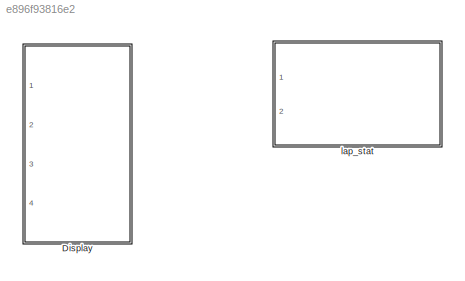
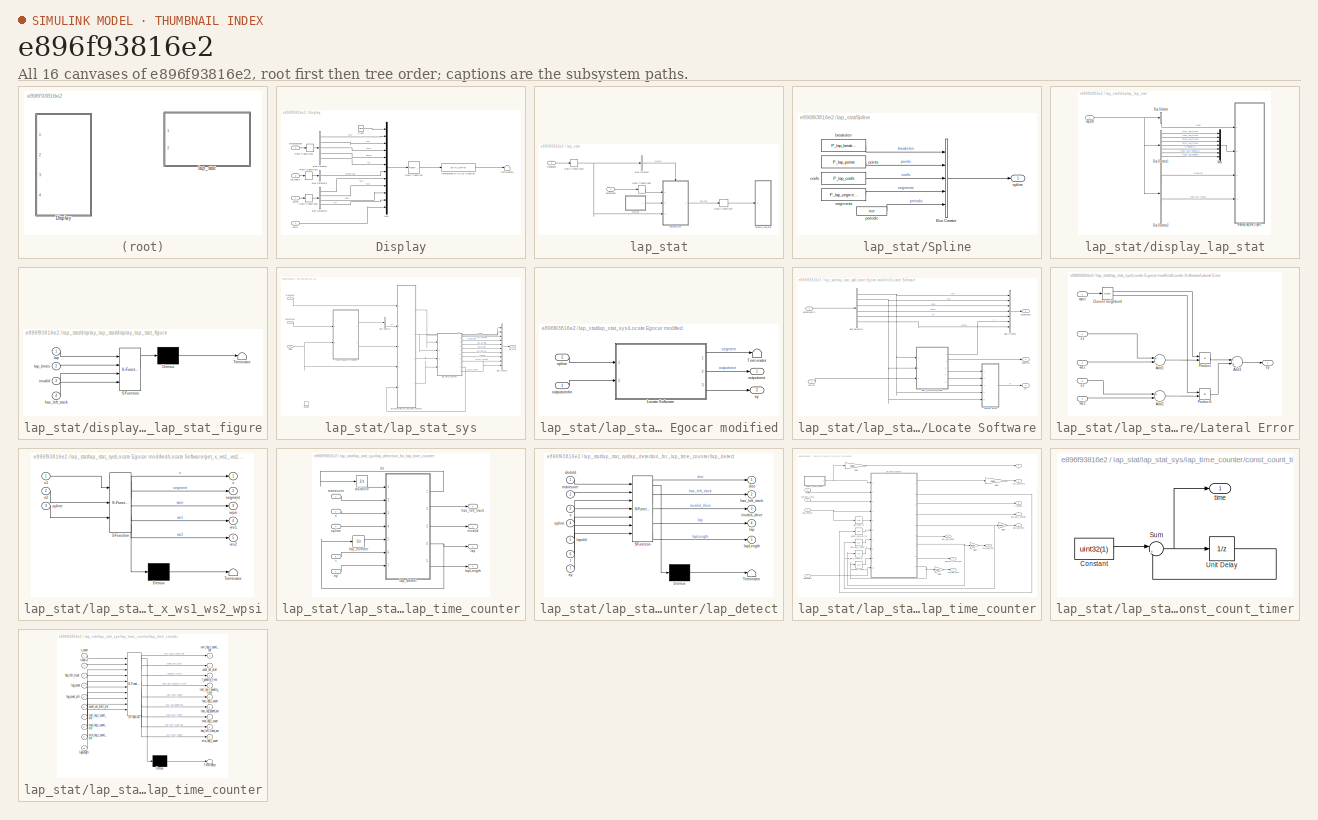
[diagram: thumbnail index - all 16 canvases of the model, root first then tree order]
MODEL slx_e896f93816e2
KIND library
CONFIG AbsTol = auto
CONFIG EnableMultiTasking = off
CONFIG FixedStep = auto
CONFIG MaxStep = auto
CONFIG MinStep = auto
CONFIG RelTol = 1e-3
CONFIG SampleTimeConstraint = Unconstrained
CONFIG Solver = VariableStepAuto
CONFIG SolverName = VariableStepAuto
CONFIG StartTime = 0.0
CONFIG StopTime = 10.0
BLOCK [SubSystem] Display
  Ports = [4]
  RequestExecContextInheritance = off
BLOCK [BusSelector] Display/Bus Selector
  OutputAsBus = off
  OutputSignals = s1,s2,psi,beta,v
  Ports = [1, 5]
BLOCK [BusSelector] Display/Bus Selector1
  OutputAsBus = off
  OutputSignals = steering
  Ports = [1, 1]
BLOCK [BusSelector] Display/Bus Selector2
  OutputAsBus = off
  OutputSignals = s1,s2,psi,v
  Ports = [1, 4]
BLOCK [Clock] Display/Clock
BLOCK [MATLABFcn] Display/Interpreted MATLAB Function
  MATLABFcn = mbc_car_display(u(1),u(2),u(3),u(4),u(5), u(6), u(7), u(8), u(9), u(10), u(11), u(12))
  Ports = [1, 1]
BLOCK [Mux] Display/Mux
  DisplayOption = bar
  Inputs = 12
  Ports = [12, 1]
BLOCK [RateTransition] Display/Rate Transition
  OutPortSampleTime = P_display_dt
BLOCK [RateTransition] Display/Rate Transition3
BLOCK [RateTransition] Display/Rate Transition4
BLOCK [RateTransition] Display/Rate Transition5
BLOCK [Terminator] Display/Terminator6
BLOCK [Inport] Display/carid
  IconDisplay = Port number
  SamplingMode = Sample based
  SignalType = real
BLOCK [Inport] Display/carinputs
  IconDisplay = Port number
  Port = 2
  SamplingMode = Sample based
  SignalType = real
BLOCK [Inport] Display/caroutputsext
  IconDisplay = Port number
  Port = 3
  SamplingMode = Sample based
  SignalType = real
BLOCK [Inport] Display/carref
  IconDisplay = Port number
  Port = 4
  SamplingMode = Sample based
  SignalType = real
BLOCK [SubSystem] lap_stat
  Ports = [2]
  RequestExecContextInheritance = off
BLOCK [BusSelector] lap_stat/Bus Selector
  OutputAsBus = off
  OutputSignals = vmax
  Ports = [1, 1]
BLOCK [RateTransition] lap_stat/Rate Transition10
BLOCK [RateTransition] lap_stat/Rate Transition7
  OutPortSampleTime = P_display_dt
BLOCK [RateTransition] lap_stat/Rate Transition8
BLOCK [SubSystem] lap_stat/Spline
  Ports = [0, 1]
  RequestExecContextInheritance = off
BLOCK [BusCreator] lap_stat/Spline/Bus Creator
  DisplayOption = bar
  InheritFromInputs = on
  Inputs = 5
  NonVirtualBus = on
  OutDataTypeStr = Bus: SPLINE
  Ports = [5, 1]
BLOCK [Constant] lap_stat/Spline/breakslen
  Value = P_lap_breakslen
BLOCK [Constant] lap_stat/Spline/coefs
  Value = P_lap_coefs
BLOCK [Constant] lap_stat/Spline/periodic
  Value = true
BLOCK [Constant] lap_stat/Spline/points
  Value = P_lap_points
BLOCK [Constant] lap_stat/Spline/segments
  Value = P_lap_segments
BLOCK [Outport] lap_stat/Spline/spline
  IconDisplay = Port number
BLOCK [SubSystem] lap_stat/display_lap_stat
  Ports = [1]
  RequestExecContextInheritance = off
BLOCK [BusSelector] lap_stat/display_lap_stat/Bus Selector
  OutputAsBus = off
  OutputSignals = lap
  Ports = [1, 1]
BLOCK [BusSelector] lap_stat/display_lap_stat/Bus Selector1
  OutputAsBus = off
  OutputSignals = curr_lap_time,last_lap_time,max_lap_time,min_lap_time,t_penalty,last_lap_t_penalty,last_lap_speed
  Ports = [1, 7]
BLOCK [BusSelector] lap_stat/display_lap_stat/Bus Selector2
  OutputAsBus = off
  OutputSignals = invalid,has_left_track
  Ports = [1, 2]
BLOCK [Mux] lap_stat/display_lap_stat/Mux
  DisplayOption = bar
  Inputs = 7
  Ports = [7, 1]
BLOCK [SubSystem] lap_stat/display_lap_stat/display_lap_stat_figure
  ErrorFcn = Stateflow.Translate.translate
  PermitHierarchicalResolution = ExplicitOnly
  Ports = [4]
  RequestExecContextInheritance = off
  SFBlockType = MATLAB Function
  TreatAsAtomicUnit = on
BLOCK [Demux] lap_stat/display_lap_stat/display_lap_stat_figure/ Demux 
  Outputs = 1
  Ports = [1, 1]
BLOCK [S-Function] lap_stat/display_lap_stat/display_lap_stat_figure/ SFunction 
  EnableBusSupport = off
  FunctionName = sf_sfun
  PortCounts = [4 1]
  Ports = [4, 1]
  SFcnIsStateOwnerBlock = off
  SFunctionDeploymentMode = off
  Tag = Stateflow S-Function mad_lib_template 1
BLOCK [Terminator] lap_stat/display_lap_stat/display_lap_stat_figure/ Terminator 
BLOCK [Inport] lap_stat/display_lap_stat/display_lap_stat_figure/has_left_track
  IconDisplay = Port number
  Port = 4
BLOCK [Inport] lap_stat/display_lap_stat/display_lap_stat_figure/invalid
  IconDisplay = Port number
  Port = 3
BLOCK [Inport] lap_stat/display_lap_stat/display_lap_stat_figure/lap
  IconDisplay = Port number
BLOCK [Inport] lap_stat/display_lap_stat/display_lap_stat_figure/lap_times
  IconDisplay = Port number
  Port = 2
BLOCK [Inport] lap_stat/display_lap_stat/lap_stat
  IconDisplay = Port number
BLOCK [SubSystem] lap_stat/lap_stat_sys
  Ports = [3, 1, 1]
  RequestExecContextInheritance = off
BLOCK [BusCreator] lap_stat/lap_stat_sys/Bus Creator
  DisplayOption = bar
  InheritFromInputs = on
  Inputs = 10
  Ports = [10, 1]
BLOCK [BusSelector] lap_stat/lap_stat_sys/Bus Selector
  OutputAsBus = off
  OutputSignals = x
  Ports = [1, 1]
BLOCK [EnablePort] lap_stat/lap_stat_sys/Enable
  Ports = []
  StatesWhenEnabling = reset
BLOCK [SubSystem] lap_stat/lap_stat_sys/Locate Egocar modified
  Ports = [2, 2]
  RequestExecContextInheritance = off
  SystemSampleTime = P_sim_dt
BLOCK [SubSystem] lap_stat/lap_stat_sys/Locate Egocar modified/Locate Software
  Ports = [2, 3]
  RequestExecContextInheritance = off
  SystemSampleTime = P_dt
BLOCK [BusCreator] lap_stat/lap_stat_sys/Locate Egocar modified/Locate Software/Bus Creator
  DisplayOption = bar
  InheritFromInputs = on
  Inputs = 7
  NonVirtualBus = on
  OutDataTypeStr = Bus: CAROUTPUTSEXT
  Ports = [7, 1]
BLOCK [BusSelector] lap_stat/lap_stat_sys/Locate Egocar modified/Locate Software/Bus Selector1
  OutputAsBus = off
  OutputSignals = s1,s2,psi,beta,v,time
  Ports = [1, 6]
BLOCK [SubSystem] lap_stat/lap_stat_sys/Locate Egocar modified/Locate Software/Lateral Error
  Ports = [5, 1]
  RequestExecContextInheritance = off
BLOCK [Sum] lap_stat/lap_stat_sys/Locate Egocar modified/Locate Software/Lateral Error/Add1
  InputSameDT = off
  Inputs = +-
  OutDataTypeStr = Inherit: Inherit via internal rule
  Ports = [2, 1]
  SaturateOnIntegerOverflow = off
BLOCK [Sum] lap_stat/lap_stat_sys/Locate Egocar modified/Locate Software/Lateral Error/Add2
  InputSameDT = off
  Inputs = +-
  OutDataTypeStr = Inherit: Inherit via internal rule
  Ports = [2, 1]
  SaturateOnIntegerOverflow = off
BLOCK [Sum] lap_stat/lap_stat_sys/Locate Egocar modified/Locate Software/Lateral Error/Add3
  InputSameDT = off
  Inputs = -+
  OutDataTypeStr = Inherit: Inherit via internal rule
  Ports = [2, 1]
  SaturateOnIntegerOverflow = off
BLOCK [Trigonometry] lap_stat/lap_stat_sys/Locate Egocar modified/Locate Software/Lateral Error/Closest neighbor4
  Operator = sincos
  Ports = [1, 2]
BLOCK [Product] lap_stat/lap_stat_sys/Locate Egocar modified/Locate Software/Lateral Error/Product
  InputSameDT = off
  OutDataTypeStr = Inherit: Inherit via internal rule
  Ports = [2, 1]
  RndMeth = Floor
  SaturateOnIntegerOverflow = off
BLOCK [Product] lap_stat/lap_stat_sys/Locate Egocar modified/Locate Software/Lateral Error/Product1
  InputSameDT = off
  OutDataTypeStr = Inherit: Inherit via internal rule
  Ports = [2, 1]
  RndMeth = Floor
  SaturateOnIntegerOverflow = off
BLOCK [Outport] lap_stat/lap_stat_sys/Locate Egocar modified/Locate Software/Lateral Error/ey
  IconDisplay = Port number
BLOCK [Inport] lap_stat/lap_stat_sys/Locate Egocar modified/Locate Software/Lateral Error/s1
  IconDisplay = Port number
  Port = 4
BLOCK [Inport] lap_stat/lap_stat_sys/Locate Egocar modified/Locate Software/Lateral Error/s2
  IconDisplay = Port number
  Port = 5
BLOCK [Inport] lap_stat/lap_stat_sys/Locate Egocar modified/Locate Software/Lateral Error/wpsi
  IconDisplay = Port number
BLOCK [Inport] lap_stat/lap_stat_sys/Locate Egocar modified/Locate Software/Lateral Error/ws1
  IconDisplay = Port number
  Port = 2
BLOCK [Inport] lap_stat/lap_stat_sys/Locate Egocar modified/Locate Software/Lateral Error/ws2
  IconDisplay = Port number
  Port = 3
BLOCK [Outport] lap_stat/lap_stat_sys/Locate Egocar modified/Locate Software/ey
  IconDisplay = Port number
  Port = 3
  VarSizeSig = No
BLOCK [SubSystem] lap_stat/lap_stat_sys/Locate Egocar modified/Locate Software/get_x_ws1_ws2_wpsi
  ErrorFcn = Stateflow.Translate.translate
  PermitHierarchicalResolution = ExplicitOnly
  Ports = [3, 5]
  RequestExecContextInheritance = off
  SFBlockType = MATLAB Function
  TreatAsAtomicUnit = on
BLOCK [Demux] lap_stat/lap_stat_sys/Locate Egocar modified/Locate Software/get_x_ws1_ws2_wpsi/ Demux 
  Outputs = 1
  Ports = [1, 1]
BLOCK [S-Function] lap_stat/lap_stat_sys/Locate Egocar modified/Locate Software/get_x_ws1_ws2_wpsi/ SFunction 
  EnableBusSupport = off
  FunctionName = sf_sfun
  PortCounts = [3 6]
  Ports = [3, 6]
  SFcnIsStateOwnerBlock = off
  SFunctionDeploymentMode = off
  Tag = Stateflow S-Function mad_lib_template 70
BLOCK [Terminator] lap_stat/lap_stat_sys/Locate Egocar modified/Locate Software/get_x_ws1_ws2_wpsi/ Terminator 
BLOCK [Inport] lap_stat/lap_stat_sys/Locate Egocar modified/Locate Software/get_x_ws1_ws2_wpsi/s1
  IconDisplay = Port number
BLOCK [Inport] lap_stat/lap_stat_sys/Locate Egocar modified/Locate Software/get_x_ws1_ws2_wpsi/s2
  IconDisplay = Port number
  Port = 2
BLOCK [Outport] lap_stat/lap_stat_sys/Locate Egocar modified/Locate Software/get_x_ws1_ws2_wpsi/segment
  IconDisplay = Port number
  Port = 2
BLOCK [Inport] lap_stat/lap_stat_sys/Locate Egocar modified/Locate Software/get_x_ws1_ws2_wpsi/spline
  IconDisplay = Port number
  Port = 3
BLOCK [Outport] lap_stat/lap_stat_sys/Locate Egocar modified/Locate Software/get_x_ws1_ws2_wpsi/wpsi
  IconDisplay = Port number
  Port = 3
BLOCK [Outport] lap_stat/lap_stat_sys/Locate Egocar modified/Locate Software/get_x_ws1_ws2_wpsi/ws1
  IconDisplay = Port number
  Port = 4
BLOCK [Outport] lap_stat/lap_stat_sys/Locate Egocar modified/Locate Software/get_x_ws1_ws2_wpsi/ws2
  IconDisplay = Port number
  Port = 5
BLOCK [Outport] lap_stat/lap_stat_sys/Locate Egocar modified/Locate Software/get_x_ws1_ws2_wpsi/x
  IconDisplay = Port number
BLOCK [Outport] lap_stat/lap_stat_sys/Locate Egocar modified/Locate Software/outputsext
  IconDisplay = Port number
  Port = 2
  VarSizeSig = No
BLOCK [Inport] lap_stat/lap_stat_sys/Locate Egocar modified/Locate Software/outputsextin
  IconDisplay = Port number
  Port = 2
BLOCK [Outport] lap_stat/lap_stat_sys/Locate Egocar modified/Locate Software/segment
  IconDisplay = Port number
  VarSizeSig = No
BLOCK [Inport] lap_stat/lap_stat_sys/Locate Egocar modified/Locate Software/spline
  IconDisplay = Port number
BLOCK [Terminator] lap_stat/lap_stat_sys/Locate Egocar modified/Terminator
BLOCK [Outport] lap_stat/lap_stat_sys/Locate Egocar modified/ey
  IconDisplay = Port number
  Port = 2
BLOCK [Outport] lap_stat/lap_stat_sys/Locate Egocar modified/outputsext
  IconDisplay = Port number
BLOCK [Inport] lap_stat/lap_stat_sys/Locate Egocar modified/outputsextin
  IconDisplay = Port number
BLOCK [Inport] lap_stat/lap_stat_sys/Locate Egocar modified/spline
  IconDisplay = Port number
  Port = 2
BLOCK [SubSystem] lap_stat/lap_stat_sys/lap_detection_for_lap_time_counter
  Ports = [5, 4]
  RequestExecContextInheritance = off
  SystemSampleTime = P_sim_dt
BLOCK [UnitDelay] lap_stat/lap_stat_sys/lap_detection_for_lap_time_counter/distance
  HasFrameUpgradeWarning = on
  InitialCondition = -inf
  SampleTime = -1
BLOCK [Inport] lap_stat/lap_stat_sys/lap_detection_for_lap_time_counter/ey
  IconDisplay = Port number
  Port = 3
BLOCK [Outport] lap_stat/lap_stat_sys/lap_detection_for_lap_time_counter/has_left_track
  IconDisplay = Port number
  Port = 3
BLOCK [Outport] lap_stat/lap_stat_sys/lap_detection_for_lap_time_counter/invalid
  IconDisplay = Port number
BLOCK [Outport] lap_stat/lap_stat_sys/lap_detection_for_lap_time_counter/lap
  IconDisplay = Port number
  Port = 2
BLOCK [Outport] lap_stat/lap_stat_sys/lap_detection_for_lap_time_counter/lapLength
  IconDisplay = Port number
  Port = 4
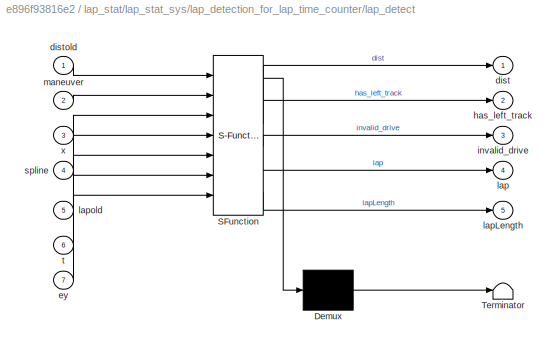
BLOCK [SubSystem] lap_stat/lap_stat_sys/lap_detection_for_lap_time_counter/lap_detect
  ErrorFcn = Stateflow.Translate.translate
  PermitHierarchicalResolution = ExplicitOnly
  Ports = [7, 5]
  RequestExecContextInheritance = off
  SFBlockType = MATLAB Function
  TreatAsAtomicUnit = on
BLOCK [Demux] lap_stat/lap_stat_sys/lap_detection_for_lap_time_counter/lap_detect/ Demux 
  Outputs = 1
  Ports = [1, 1]
BLOCK [S-Function] lap_stat/lap_stat_sys/lap_detection_for_lap_time_counter/lap_detect/ SFunction 
  EnableBusSupport = off
  FunctionName = sf_sfun
  Parameters = P_p_c_2,P_width
  PortCounts = [7 6]
  Ports = [7, 6]
  SFcnIsStateOwnerBlock = off
  SFunctionDeploymentMode = off
  Tag = Stateflow S-Function mad_lib_template 60
BLOCK [Terminator] lap_stat/lap_stat_sys/lap_detection_for_lap_time_counter/lap_detect/ Terminator 
BLOCK [Outport] lap_stat/lap_stat_sys/lap_detection_for_lap_time_counter/lap_detect/dist
  IconDisplay = Port number
BLOCK [Inport] lap_stat/lap_stat_sys/lap_detection_for_lap_time_counter/lap_detect/distold
  IconDisplay = Port number
BLOCK [Inport] lap_stat/lap_stat_sys/lap_detection_for_lap_time_counter/lap_detect/ey
  IconDisplay = Port number
  Port = 7
BLOCK [Outport] lap_stat/lap_stat_sys/lap_detection_for_lap_time_counter/lap_detect/has_left_track
  IconDisplay = Port number
  Port = 2
BLOCK [Outport] lap_stat/lap_stat_sys/lap_detection_for_lap_time_counter/lap_detect/invalid_drive
  IconDisplay = Port number
  Port = 3
BLOCK [Outport] lap_stat/lap_stat_sys/lap_detection_for_lap_time_counter/lap_detect/lap
  IconDisplay = Port number
  Port = 4
BLOCK [Outport] lap_stat/lap_stat_sys/lap_detection_for_lap_time_counter/lap_detect/lapLength
  IconDisplay = Port number
  Port = 5
BLOCK [Inport] lap_stat/lap_stat_sys/lap_detection_for_lap_time_counter/lap_detect/lapold
  IconDisplay = Port number
  Port = 5
BLOCK [Inport] lap_stat/lap_stat_sys/lap_detection_for_lap_time_counter/lap_detect/maneuver
  IconDisplay = Port number
  Port = 2
BLOCK [Inport] lap_stat/lap_stat_sys/lap_detection_for_lap_time_counter/lap_detect/spline
  IconDisplay = Port number
  Port = 4
BLOCK [Inport] lap_stat/lap_stat_sys/lap_detection_for_lap_time_counter/lap_detect/t
  IconDisplay = Port number
  Port = 6
BLOCK [Inport] lap_stat/lap_stat_sys/lap_detection_for_lap_time_counter/lap_detect/x
  IconDisplay = Port number
  Port = 3
BLOCK [UnitDelay] lap_stat/lap_stat_sys/lap_detection_for_lap_time_counter/lap_number
  HasFrameUpgradeWarning = on
  InitialCondition = uint32(0)
  SampleTime = -1
BLOCK [Inport] lap_stat/lap_stat_sys/lap_detection_for_lap_time_counter/maneuver
  IconDisplay = Port number
BLOCK [Inport] lap_stat/lap_stat_sys/lap_detection_for_lap_time_counter/spline
  IconDisplay = Port number
  Port = 4
BLOCK [Inport] lap_stat/lap_stat_sys/lap_detection_for_lap_time_counter/t
  IconDisplay = Port number
  Port = 5
BLOCK [Inport] lap_stat/lap_stat_sys/lap_detection_for_lap_time_counter/x
  IconDisplay = Port number
  Port = 2
BLOCK [Outport] lap_stat/lap_stat_sys/lap_stat
  IconDisplay = Port number
BLOCK [SubSystem] lap_stat/lap_stat_sys/lap_time_counter
  Ports = [4, 9]
  RequestExecContextInheritance = off
  SystemSampleTime = P_sim_dt
BLOCK [Gain] lap_stat/lap_stat_sys/lap_time_counter/Gain1
  Gain = single(P_sim_dt)
  OutDataTypeStr = single
  ParamDataTypeStr = Inherit: Inherit via internal rule
  SaturateOnIntegerOverflow = off
BLOCK [Gain] lap_stat/lap_stat_sys/lap_time_counter/Gain2
  Gain = single(P_sim_dt)
  OutDataTypeStr = single
  ParamDataTypeStr = Inherit: Inherit via internal rule
  SaturateOnIntegerOverflow = off
BLOCK [Gain] lap_stat/lap_stat_sys/lap_time_counter/Gain3
  Gain = single(P_sim_dt)
  OutDataTypeStr = single
  ParamDataTypeStr = Inherit: Inherit via internal rule
  SaturateOnIntegerOverflow = off
BLOCK [Gain] lap_stat/lap_stat_sys/lap_time_counter/Gain4
  Gain = single(P_sim_dt)
  OutDataTypeStr = single
  ParamDataTypeStr = Inherit: Inherit via internal rule
  SaturateOnIntegerOverflow = off
BLOCK [Gain] lap_stat/lap_stat_sys/lap_time_counter/Gain5
  Gain = single(P_sim_dt)
  OutDataTypeStr = single
  ParamDataTypeStr = Inherit: Inherit via internal rule
  SaturateOnIntegerOverflow = off
BLOCK [SubSystem] lap_stat/lap_stat_sys/lap_time_counter/const_count_timer
  Ports = [0, 1]
  RequestExecContextInheritance = off
BLOCK [Constant] lap_stat/lap_stat_sys/lap_time_counter/const_count_timer/Constant
  SampleTime = -1
  Value = uint32(1)
BLOCK [Sum] lap_stat/lap_stat_sys/lap_time_counter/const_count_timer/Sum
  IconShape = round
  InputSameDT = off
  Inputs = |++
  OutDataTypeStr = Inherit: Inherit via internal rule
  Ports = [2, 1]
  SaturateOnIntegerOverflow = off
BLOCK [UnitDelay] lap_stat/lap_stat_sys/lap_time_counter/const_count_timer/Unit Delay
  HasFrameUpgradeWarning = on
  InitialCondition = uint32(0)
  SampleTime = -1
BLOCK [Outport] lap_stat/lap_stat_sys/lap_time_counter/const_count_timer/time
  IconDisplay = Port number
BLOCK [UnitDelay] lap_stat/lap_stat_sys/lap_time_counter/count_val_start_d
  HasFrameUpgradeWarning = on
  InitialCondition = uint32(0)
  SampleTime = -1
BLOCK [Outport] lap_stat/lap_stat_sys/lap_time_counter/curr_lap_time
  IconDisplay = Port number
BLOCK [Inport] lap_stat/lap_stat_sys/lap_time_counter/has_left_track
  IconDisplay = Port number
  Port = 3
BLOCK [Outport] lap_stat/lap_stat_sys/lap_time_counter/has_left_track_out
  IconDisplay = Port number
  Port = 5
BLOCK [Inport] lap_stat/lap_stat_sys/lap_time_counter/invalid
  IconDisplay = Port number
BLOCK [Inport] lap_stat/lap_stat_sys/lap_time_counter/lapLength
  IconDisplay = Port number
  Port = 4
BLOCK [UnitDelay] lap_stat/lap_stat_sys/lap_time_counter/lap_count_d
  HasFrameUpgradeWarning = on
  InitialCondition = uint32(0)
  SampleTime = -1
BLOCK [Inport] lap_stat/lap_stat_sys/lap_time_counter/lap_counter
  IconDisplay = Port number
  Port = 2
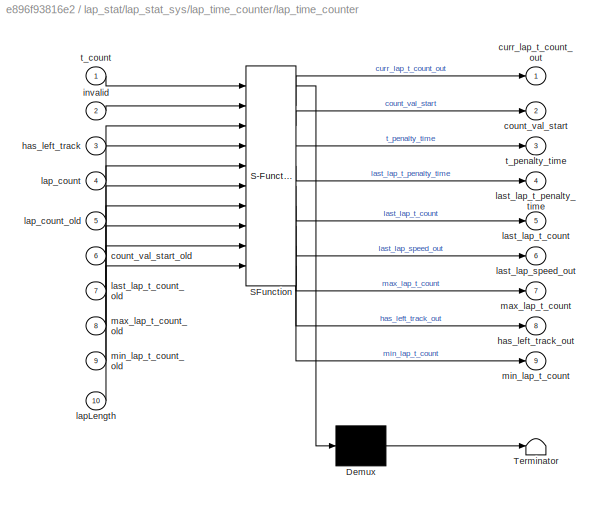
BLOCK [SubSystem] lap_stat/lap_stat_sys/lap_time_counter/lap_time_counter
  ErrorFcn = Stateflow.Translate.translate
  PermitHierarchicalResolution = ExplicitOnly
  Ports = [10, 9]
  RequestExecContextInheritance = off
  SFBlockType = MATLAB Function
  TreatAsAtomicUnit = on
BLOCK [Demux] lap_stat/lap_stat_sys/lap_time_counter/lap_time_counter/ Demux 
  Outputs = 1
  Ports = [1, 1]
BLOCK [S-Function] lap_stat/lap_stat_sys/lap_time_counter/lap_time_counter/ SFunction 
  EnableBusSupport = off
  FunctionName = sf_sfun
  Parameters = P_sim_dt
  PortCounts = [10 10]
  Ports = [10, 10]
  SFcnIsStateOwnerBlock = off
  SFunctionDeploymentMode = off
  Tag = Stateflow S-Function mad_lib_template 6
BLOCK [Terminator] lap_stat/lap_stat_sys/lap_time_counter/lap_time_counter/ Terminator 
BLOCK [Outport] lap_stat/lap_stat_sys/lap_time_counter/lap_time_counter/count_val_start
  IconDisplay = Port number
  Port = 2
BLOCK [Inport] lap_stat/lap_stat_sys/lap_time_counter/lap_time_counter/count_val_start_old
  IconDisplay = Port number
  Port = 6
BLOCK [Outport] lap_stat/lap_stat_sys/lap_time_counter/lap_time_counter/curr_lap_t_count_out
  IconDisplay = Port number
BLOCK [Inport] lap_stat/lap_stat_sys/lap_time_counter/lap_time_counter/has_left_track
  IconDisplay = Port number
  Port = 3
BLOCK [Outport] lap_stat/lap_stat_sys/lap_time_counter/lap_time_counter/has_left_track_out
  IconDisplay = Port number
  Port = 8
BLOCK [Inport] lap_stat/lap_stat_sys/lap_time_counter/lap_time_counter/invalid
  IconDisplay = Port number
  Port = 2
BLOCK [Inport] lap_stat/lap_stat_sys/lap_time_counter/lap_time_counter/lapLength
  IconDisplay = Port number
  Port = 10
BLOCK [Inport] lap_stat/lap_stat_sys/lap_time_counter/lap_time_counter/lap_count
  IconDisplay = Port number
  Port = 4
BLOCK [Inport] lap_stat/lap_stat_sys/lap_time_counter/lap_time_counter/lap_count_old
  IconDisplay = Port number
  Port = 5
BLOCK [Outport] lap_stat/lap_stat_sys/lap_time_counter/lap_time_counter/last_lap_speed_out
  IconDisplay = Port number
  Port = 6
BLOCK [Outport] lap_stat/lap_stat_sys/lap_time_counter/lap_time_counter/last_lap_t_count
  IconDisplay = Port number
  Port = 5
BLOCK [Inport] lap_stat/lap_stat_sys/lap_time_counter/lap_time_counter/last_lap_t_count_old
  IconDisplay = Port number
  Port = 7
BLOCK [Outport] lap_stat/lap_stat_sys/lap_time_counter/lap_time_counter/last_lap_t_penalty_time
  IconDisplay = Port number
  Port = 4
BLOCK [Outport] lap_stat/lap_stat_sys/lap_time_counter/lap_time_counter/max_lap_t_count
  IconDisplay = Port number
  Port = 7
BLOCK [Inport] lap_stat/lap_stat_sys/lap_time_counter/lap_time_counter/max_lap_t_count_old
  IconDisplay = Port number
  Port = 8
BLOCK [Outport] lap_stat/lap_stat_sys/lap_time_counter/lap_time_counter/min_lap_t_count
  IconDisplay = Port number
  Port = 9
BLOCK [Inport] lap_stat/lap_stat_sys/lap_time_counter/lap_time_counter/min_lap_t_count_old
  IconDisplay = Port number
  Port = 9
BLOCK [Inport] lap_stat/lap_stat_sys/lap_time_counter/lap_time_counter/t_count
  IconDisplay = Port number
BLOCK [Outport] lap_stat/lap_stat_sys/lap_time_counter/lap_time_counter/t_penalty_time
  IconDisplay = Port number
  Port = 3
BLOCK [Outport] lap_stat/lap_stat_sys/lap_time_counter/last_lap_speed
  IconDisplay = Port number
  Port = 9
BLOCK [UnitDelay] lap_stat/lap_stat_sys/lap_time_counter/last_lap_t_count_d
  HasFrameUpgradeWarning = on
  InitialCondition = uint32(intmax('uint32'))
  SampleTime = -1
BLOCK [Outport] lap_stat/lap_stat_sys/lap_time_counter/last_lap_t_penalty
  IconDisplay = Port number
  Port = 7
BLOCK [Outport] lap_stat/lap_stat_sys/lap_time_counter/last_lap_time
  IconDisplay = Port number
  Port = 2
BLOCK [UnitDelay] lap_stat/lap_stat_sys/lap_time_counter/max_lap_t_count_d
  HasFrameUpgradeWarning = on
  InitialCondition = uint32(0)
  SampleTime = -1
BLOCK [Outport] lap_stat/lap_stat_sys/lap_time_counter/max_lap_time
  IconDisplay = Port number
  Port = 3
BLOCK [UnitDelay] lap_stat/lap_stat_sys/lap_time_counter/min_lap_t_count_d
  HasFrameUpgradeWarning = on
  InitialCondition = uint32(intmax('uint32'))
  SampleTime = -1
BLOCK [Outport] lap_stat/lap_stat_sys/lap_time_counter/min_lap_time
  IconDisplay = Port number
  Port = 4
BLOCK [Outport] lap_stat/lap_stat_sys/lap_time_counter/t
  IconDisplay = Port number
  Port = 8
BLOCK [Outport] lap_stat/lap_stat_sys/lap_time_counter/t_penalty
  IconDisplay = Port number
  Port = 6
BLOCK [Inport] lap_stat/lap_stat_sys/maneuver
  IconDisplay = Port number
  Port = 3
BLOCK [Inport] lap_stat/lap_stat_sys/outputsext
  IconDisplay = Port number
BLOCK [Inport] lap_stat/lap_stat_sys/spline
  IconDisplay = Port number
  Port = 2
BLOCK [Inport] lap_stat/maneuver
  IconDisplay = Port number
  Port = 2
BLOCK [Inport] lap_stat/outputsext
  IconDisplay = Port number
LINE Display/Bus Selector1:1 -> Display/Mux:7
LINE Display/Bus Selector2:1 -> Display/Mux:8
LINE Display/Bus Selector2:2 -> Display/Mux:9
LINE Display/Bus Selector2:3 -> Display/Mux:10
LINE Display/Bus Selector2:4 -> Display/Mux:11
LINE Display/Bus Selector:1 -> Display/Mux:2
LINE Display/Bus Selector:2 -> Display/Mux:3
LINE Display/Bus Selector:3 -> Display/Mux:4
LINE Display/Bus Selector:4 -> Display/Mux:5
LINE Display/Bus Selector:5 -> Display/Mux:6
LINE Display/Clock:1 -> Display/Mux:1
LINE Display/Interpreted MATLAB Function:1 -> Display/Terminator6:1
LINE Display/Mux:1 -> Display/Rate Transition:1
LINE Display/Rate Transition3:1 -> Display/Bus Selector:1
LINE Display/Rate Transition4:1 -> Display/Bus Selector1:1
LINE Display/Rate Transition5:1 -> Display/Bus Selector2:1
LINE Display/Rate Transition:1 -> Display/Interpreted MATLAB Function:1
LINE Display/carid:1 -> Display/Mux:12
LINE Display/carinputs:1 -> Display/Rate Transition4:1
LINE Display/caroutputsext:1 -> Display/Rate Transition3:1
LINE Display/carref:1 -> Display/Rate Transition5:1
LINE lap_stat/Bus Selector:1 -> lap_stat/lap_stat_sys:enable
NET lap_stat/Rate Transition10:1 -> lap_stat/Bus Selector:1, lap_stat/lap_stat_sys:3
LINE lap_stat/Rate Transition7:1 -> lap_stat/display_lap_stat:1
LINE lap_stat/Rate Transition8:1 -> lap_stat/lap_stat_sys:1
LINE lap_stat/Spline/Bus Creator:1 -> lap_stat/Spline/spline:1
LINE lap_stat/Spline/breakslen:1 -> lap_stat/Spline/Bus Creator:1
LINE lap_stat/Spline/coefs:1 -> lap_stat/Spline/Bus Creator:3
LINE lap_stat/Spline/periodic:1 -> lap_stat/Spline/Bus Creator:5
LINE lap_stat/Spline/points:1 -> lap_stat/Spline/Bus Creator:2
LINE lap_stat/Spline/segments:1 -> lap_stat/Spline/Bus Creator:4
LINE lap_stat/Spline:1 -> lap_stat/lap_stat_sys:2
LINE lap_stat/display_lap_stat/Bus Selector1:1 -> lap_stat/display_lap_stat/Mux:1
LINE lap_stat/display_lap_stat/Bus Selector1:2 -> lap_stat/display_lap_stat/Mux:2
LINE lap_stat/display_lap_stat/Bus Selector1:3 -> lap_stat/display_lap_stat/Mux:3
LINE lap_stat/display_lap_stat/Bus Selector1:4 -> lap_stat/display_lap_stat/Mux:4
LINE lap_stat/display_lap_stat/Bus Selector1:5 -> lap_stat/display_lap_stat/Mux:5
LINE lap_stat/display_lap_stat/Bus Selector1:6 -> lap_stat/display_lap_stat/Mux:6
LINE lap_stat/display_lap_stat/Bus Selector1:7 -> lap_stat/display_lap_stat/Mux:7
LINE lap_stat/display_lap_stat/Bus Selector2:1 -> lap_stat/display_lap_stat/display_lap_stat_figure:3
LINE lap_stat/display_lap_stat/Bus Selector2:2 -> lap_stat/display_lap_stat/display_lap_stat_figure:4
LINE lap_stat/display_lap_stat/Bus Selector:1 -> lap_stat/display_lap_stat/display_lap_stat_figure:1
LINE lap_stat/display_lap_stat/Mux:1 -> lap_stat/display_lap_stat/display_lap_stat_figure:2
NET lap_stat/display_lap_stat/lap_stat:1 -> lap_stat/display_lap_stat/Bus Selector1:1, lap_stat/display_lap_stat/Bus Selector2:1, lap_stat/display_lap_stat/Bus Selector:1
LINE lap_stat/lap_stat_sys/Bus Creator:1 -> lap_stat/lap_stat_sys/lap_stat:1
LINE lap_stat/lap_stat_sys/Bus Selector:1 -> lap_stat/lap_stat_sys/lap_detection_for_lap_time_counter:2
LINE lap_stat/lap_stat_sys/Locate Egocar modified/Locate Software/Bus Creator:1 -> lap_stat/lap_stat_sys/Locate Egocar modified/Locate Software/outputsext:1
NET lap_stat/lap_stat_sys/Locate Egocar modified/Locate Software/Bus Selector1:1 -> lap_stat/lap_stat_sys/Locate Egocar modified/Locate Software/Bus Creator:1, lap_stat/lap_stat_sys/Locate Egocar modified/Locate Software/Lateral Error:4, lap_stat/lap_stat_sys/Locate Egocar modified/Locate Software/get_x_ws1_ws2_wpsi:1
NET lap_stat/lap_stat_sys/Locate Egocar modified/Locate Software/Bus Selector1:2 -> lap_stat/lap_stat_sys/Locate Egocar modified/Locate Software/Bus Creator:2, lap_stat/lap_stat_sys/Locate Egocar modified/Locate Software/Lateral Error:5, lap_stat/lap_stat_sys/Locate Egocar modified/Locate Software/get_x_ws1_ws2_wpsi:2
LINE lap_stat/lap_stat_sys/Locate Egocar modified/Locate Software/Bus Selector1:3 -> lap_stat/lap_stat_sys/Locate Egocar modified/Locate Software/Bus Creator:3
LINE lap_stat/lap_stat_sys/Locate Egocar modified/Locate Software/Bus Selector1:4 -> lap_stat/lap_stat_sys/Locate Egocar modified/Locate Software/Bus Creator:4
LINE lap_stat/lap_stat_sys/Locate Egocar modified/Locate Software/Bus Selector1:5 -> lap_stat/lap_stat_sys/Locate Egocar modified/Locate Software/Bus Creator:5
LINE lap_stat/lap_stat_sys/Locate Egocar modified/Locate Software/Bus Selector1:6 -> lap_stat/lap_stat_sys/Locate Egocar modified/Locate Software/Bus Creator:7
LINE lap_stat/lap_stat_sys/Locate Egocar modified/Locate Software/Lateral Error/Add1:1 -> lap_stat/lap_stat_sys/Locate Egocar modified/Locate Software/Lateral Error/Product:2
LINE lap_stat/lap_stat_sys/Locate Egocar modified/Locate Software/Lateral Error/Add2:1 -> lap_stat/lap_stat_sys/Locate Egocar modified/Locate Software/Lateral Error/Product1:2
LINE lap_stat/lap_stat_sys/Locate Egocar modified/Locate Software/Lateral Error/Add3:1 -> lap_stat/lap_stat_sys/Locate Egocar modified/Locate Software/Lateral Error/ey:1
LINE lap_stat/lap_stat_sys/Locate Egocar modified/Locate Software/Lateral Error/Closest neighbor4:1 -> lap_stat/lap_stat_sys/Locate Egocar modified/Locate Software/Lateral Error/Product:1
LINE lap_stat/lap_stat_sys/Locate Egocar modified/Locate Software/Lateral Error/Closest neighbor4:2 -> lap_stat/lap_stat_sys/Locate Egocar modified/Locate Software/Lateral Error/Product1:1
LINE lap_stat/lap_stat_sys/Locate Egocar modified/Locate Software/Lateral Error/Product1:1 -> lap_stat/lap_stat_sys/Locate Egocar modified/Locate Software/Lateral Error/Add3:2
LINE lap_stat/lap_stat_sys/Locate Egocar modified/Locate Software/Lateral Error/Product:1 -> lap_stat/lap_stat_sys/Locate Egocar modified/Locate Software/Lateral Error/Add3:1
LINE lap_stat/lap_stat_sys/Locate Egocar modified/Locate Software/Lateral Error/s1:1 -> lap_stat/lap_stat_sys/Locate Egocar modified/Locate Software/Lateral Error/Add1:1
LINE lap_stat/lap_stat_sys/Locate Egocar modified/Locate Software/Lateral Error/s2:1 -> lap_stat/lap_stat_sys/Locate Egocar modified/Locate Software/Lateral Error/Add2:1
LINE lap_stat/lap_stat_sys/Locate Egocar modified/Locate Software/Lateral Error/wpsi:1 -> lap_stat/lap_stat_sys/Locate Egocar modified/Locate Software/Lateral Error/Closest neighbor4:1
LINE lap_stat/lap_stat_sys/Locate Egocar modified/Locate Software/Lateral Error/ws1:1 -> lap_stat/lap_stat_sys/Locate Egocar modified/Locate Software/Lateral Error/Add1:2
LINE lap_stat/lap_stat_sys/Locate Egocar modified/Locate Software/Lateral Error/ws2:1 -> lap_stat/lap_stat_sys/Locate Egocar modified/Locate Software/Lateral Error/Add2:2
LINE lap_stat/lap_stat_sys/Locate Egocar modified/Locate Software/Lateral Error:1 -> lap_stat/lap_stat_sys/Locate Egocar modified/Locate Software/ey:1
LINE lap_stat/lap_stat_sys/Locate Egocar modified/Locate Software/get_x_ws1_ws2_wpsi:1 -> lap_stat/lap_stat_sys/Locate Egocar modified/Locate Software/Bus Creator:6
LINE lap_stat/lap_stat_sys/Locate Egocar modified/Locate Software/get_x_ws1_ws2_wpsi:2 -> lap_stat/lap_stat_sys/Locate Egocar modified/Locate Software/segment:1
LINE lap_stat/lap_stat_sys/Locate Egocar modified/Locate Software/get_x_ws1_ws2_wpsi:3 -> lap_stat/lap_stat_sys/Locate Egocar modified/Locate Software/Lateral Error:1
LINE lap_stat/lap_stat_sys/Locate Egocar modified/Locate Software/get_x_ws1_ws2_wpsi:4 -> lap_stat/lap_stat_sys/Locate Egocar modified/Locate Software/Lateral Error:2
LINE lap_stat/lap_stat_sys/Locate Egocar modified/Locate Software/get_x_ws1_ws2_wpsi:5 -> lap_stat/lap_stat_sys/Locate Egocar modified/Locate Software/Lateral Error:3
LINE lap_stat/lap_stat_sys/Locate Egocar modified/Locate Software/outputsextin:1 -> lap_stat/lap_stat_sys/Locate Egocar modified/Locate Software/Bus Selector1:1
LINE lap_stat/lap_stat_sys/Locate Egocar modified/Locate Software/spline:1 -> lap_stat/lap_stat_sys/Locate Egocar modified/Locate Software/get_x_ws1_ws2_wpsi:3
LINE lap_stat/lap_stat_sys/Locate Egocar modified/Locate Software:1 -> lap_stat/lap_stat_sys/Locate Egocar modified/Terminator:1
LINE lap_stat/lap_stat_sys/Locate Egocar modified/Locate Software:2 -> lap_stat/lap_stat_sys/Locate Egocar modified/outputsext:1
LINE lap_stat/lap_stat_sys/Locate Egocar modified/Locate Software:3 -> lap_stat/lap_stat_sys/Locate Egocar modified/ey:1
LINE lap_stat/lap_stat_sys/Locate Egocar modified/outputsextin:1 -> lap_stat/lap_stat_sys/Locate Egocar modified/Locate Software:2
LINE lap_stat/lap_stat_sys/Locate Egocar modified/spline:1 -> lap_stat/lap_stat_sys/Locate Egocar modified/Locate Software:1
LINE lap_stat/lap_stat_sys/Locate Egocar modified:1 -> lap_stat/lap_stat_sys/Bus Selector:1
LINE lap_stat/lap_stat_sys/Locate Egocar modified:2 -> lap_stat/lap_stat_sys/lap_detection_for_lap_time_counter:3
LINE lap_stat/lap_stat_sys/lap_detection_for_lap_time_counter/distance:1 -> lap_stat/lap_stat_sys/lap_detection_for_lap_time_counter/lap_detect:1
LINE lap_stat/lap_stat_sys/lap_detection_for_lap_time_counter/ey:1 -> lap_stat/lap_stat_sys/lap_detection_for_lap_time_counter/lap_detect:7
LINE lap_stat/lap_stat_sys/lap_detection_for_lap_time_counter/lap_detect:1 -> lap_stat/lap_stat_sys/lap_detection_for_lap_time_counter/distance:1
LINE lap_stat/lap_stat_sys/lap_detection_for_lap_time_counter/lap_detect:2 -> lap_stat/lap_stat_sys/lap_detection_for_lap_time_counter/has_left_track:1
LINE lap_stat/lap_stat_sys/lap_detection_for_lap_time_counter/lap_detect:3 -> lap_stat/lap_stat_sys/lap_detection_for_lap_time_counter/invalid:1
NET lap_stat/lap_stat_sys/lap_detection_for_lap_time_counter/lap_detect:4 -> lap_stat/lap_stat_sys/lap_detection_for_lap_time_counter/lap:1, lap_stat/lap_stat_sys/lap_detection_for_lap_time_counter/lap_number:1
LINE lap_stat/lap_stat_sys/lap_detection_for_lap_time_counter/lap_detect:5 -> lap_stat/lap_stat_sys/lap_detection_for_lap_time_counter/lapLength:1
LINE lap_stat/lap_stat_sys/lap_detection_for_lap_time_counter/lap_number:1 -> lap_stat/lap_stat_sys/lap_detection_for_lap_time_counter/lap_detect:5
LINE lap_stat/lap_stat_sys/lap_detection_for_lap_time_counter/maneuver:1 -> lap_stat/lap_stat_sys/lap_detection_for_lap_time_counter/lap_detect:2
LINE lap_stat/lap_stat_sys/lap_detection_for_lap_time_counter/spline:1 -> lap_stat/lap_stat_sys/lap_detection_for_lap_time_counter/lap_detect:4
LINE lap_stat/lap_stat_sys/lap_detection_for_lap_time_counter/t:1 -> lap_stat/lap_stat_sys/lap_detection_for_lap_time_counter/lap_detect:6
LINE lap_stat/lap_stat_sys/lap_detection_for_lap_time_counter/x:1 -> lap_stat/lap_stat_sys/lap_detection_for_lap_time_counter/lap_detect:3
NET lap_stat/lap_stat_sys/lap_detection_for_lap_time_counter:1 -> lap_stat/lap_stat_sys/Bus Creator:1, lap_stat/lap_stat_sys/lap_time_counter:1
NET lap_stat/lap_stat_sys/lap_detection_for_lap_time_counter:2 -> lap_stat/lap_stat_sys/Bus Creator:2, lap_stat/lap_stat_sys/lap_time_counter:2
LINE lap_stat/lap_stat_sys/lap_detection_for_lap_time_counter:3 -> lap_stat/lap_stat_sys/lap_time_counter:3
LINE lap_stat/lap_stat_sys/lap_detection_for_lap_time_counter:4 -> lap_stat/lap_stat_sys/lap_time_counter:4
LINE lap_stat/lap_stat_sys/lap_time_counter/Gain1:1 -> lap_stat/lap_stat_sys/lap_time_counter/t:1
LINE lap_stat/lap_stat_sys/lap_time_counter/Gain2:1 -> lap_stat/lap_stat_sys/lap_time_counter/curr_lap_time:1
LINE lap_stat/lap_stat_sys/lap_time_counter/Gain3:1 -> lap_stat/lap_stat_sys/lap_time_counter/last_lap_time:1
LINE lap_stat/lap_stat_sys/lap_time_counter/Gain4:1 -> lap_stat/lap_stat_sys/lap_time_counter/max_lap_time:1
LINE lap_stat/lap_stat_sys/lap_time_counter/Gain5:1 -> lap_stat/lap_stat_sys/lap_time_counter/min_lap_time:1
LINE lap_stat/lap_stat_sys/lap_time_counter/const_count_timer/Constant:1 -> lap_stat/lap_stat_sys/lap_time_counter/const_count_timer/Sum:1
NET lap_stat/lap_stat_sys/lap_time_counter/const_count_timer/Sum:1 -> lap_stat/lap_stat_sys/lap_time_counter/const_count_timer/Unit Delay:1, lap_stat/lap_stat_sys/lap_time_counter/const_count_timer/time:1
LINE lap_stat/lap_stat_sys/lap_time_counter/const_count_timer/Unit Delay:1 -> lap_stat/lap_stat_sys/lap_time_counter/const_count_timer/Sum:2
NET lap_stat/lap_stat_sys/lap_time_counter/const_count_timer:1 -> lap_stat/lap_stat_sys/lap_time_counter/Gain1:1, lap_stat/lap_stat_sys/lap_time_counter/lap_time_counter:1
LINE lap_stat/lap_stat_sys/lap_time_counter/count_val_start_d:1 -> lap_stat/lap_stat_sys/lap_time_counter/lap_time_counter:6
LINE lap_stat/lap_stat_sys/lap_time_counter/has_left_track:1 -> lap_stat/lap_stat_sys/lap_time_counter/lap_time_counter:3
LINE lap_stat/lap_stat_sys/lap_time_counter/invalid:1 -> lap_stat/lap_stat_sys/lap_time_counter/lap_time_counter:2
LINE lap_stat/lap_stat_sys/lap_time_counter/lapLength:1 -> lap_stat/lap_stat_sys/lap_time_counter/lap_time_counter:10
LINE lap_stat/lap_stat_sys/lap_time_counter/lap_count_d:1 -> lap_stat/lap_stat_sys/lap_time_counter/lap_time_counter:5
NET lap_stat/lap_stat_sys/lap_time_counter/lap_counter:1 -> lap_stat/lap_stat_sys/lap_time_counter/lap_count_d:1, lap_stat/lap_stat_sys/lap_time_counter/lap_time_counter:4
LINE lap_stat/lap_stat_sys/lap_time_counter/lap_time_counter:1 -> lap_stat/lap_stat_sys/lap_time_counter/Gain2:1
LINE lap_stat/lap_stat_sys/lap_time_counter/lap_time_counter:2 -> lap_stat/lap_stat_sys/lap_time_counter/count_val_start_d:1
LINE lap_stat/lap_stat_sys/lap_time_counter/lap_time_counter:3 -> lap_stat/lap_stat_sys/lap_time_counter/t_penalty:1
LINE lap_stat/lap_stat_sys/lap_time_counter/lap_time_counter:4 -> lap_stat/lap_stat_sys/lap_time_counter/last_lap_t_penalty:1
NET lap_stat/lap_stat_sys/lap_time_counter/lap_time_counter:5 -> lap_stat/lap_stat_sys/lap_time_counter/Gain3:1, lap_stat/lap_stat_sys/lap_time_counter/last_lap_t_count_d:1
LINE lap_stat/lap_stat_sys/lap_time_counter/lap_time_counter:6 -> lap_stat/lap_stat_sys/lap_time_counter/last_lap_speed:1
NET lap_stat/lap_stat_sys/lap_time_counter/lap_time_counter:7 -> lap_stat/lap_stat_sys/lap_time_counter/Gain4:1, lap_stat/lap_stat_sys/lap_time_counter/max_lap_t_count_d:1
LINE lap_stat/lap_stat_sys/lap_time_counter/lap_time_counter:8 -> lap_stat/lap_stat_sys/lap_time_counter/has_left_track_out:1
NET lap_stat/lap_stat_sys/lap_time_counter/lap_time_counter:9 -> lap_stat/lap_stat_sys/lap_time_counter/Gain5:1, lap_stat/lap_stat_sys/lap_time_counter/min_lap_t_count_d:1
LINE lap_stat/lap_stat_sys/lap_time_counter/last_lap_t_count_d:1 -> lap_stat/lap_stat_sys/lap_time_counter/lap_time_counter:7
LINE lap_stat/lap_stat_sys/lap_time_counter/max_lap_t_count_d:1 -> lap_stat/lap_stat_sys/lap_time_counter/lap_time_counter:8
LINE lap_stat/lap_stat_sys/lap_time_counter/min_lap_t_count_d:1 -> lap_stat/lap_stat_sys/lap_time_counter/lap_time_counter:9
LINE lap_stat/lap_stat_sys/lap_time_counter:1 -> lap_stat/lap_stat_sys/Bus Creator:3
LINE lap_stat/lap_stat_sys/lap_time_counter:2 -> lap_stat/lap_stat_sys/Bus Creator:4
LINE lap_stat/lap_stat_sys/lap_time_counter:3 -> lap_stat/lap_stat_sys/Bus Creator:5
LINE lap_stat/lap_stat_sys/lap_time_counter:4 -> lap_stat/lap_stat_sys/Bus Creator:6
LINE lap_stat/lap_stat_sys/lap_time_counter:5 -> lap_stat/lap_stat_sys/Bus Creator:7
LINE lap_stat/lap_stat_sys/lap_time_counter:6 -> lap_stat/lap_stat_sys/Bus Creator:8
LINE lap_stat/lap_stat_sys/lap_time_counter:7 -> lap_stat/lap_stat_sys/Bus Creator:9
LINE lap_stat/lap_stat_sys/lap_time_counter:8 -> lap_stat/lap_stat_sys/lap_detection_for_lap_time_counter:5
LINE lap_stat/lap_stat_sys/lap_time_counter:9 -> lap_stat/lap_stat_sys/Bus Creator:10
LINE lap_stat/lap_stat_sys/maneuver:1 -> lap_stat/lap_stat_sys/lap_detection_for_lap_time_counter:1
LINE lap_stat/lap_stat_sys/outputsext:1 -> lap_stat/lap_stat_sys/Locate Egocar modified:1
NET lap_stat/lap_stat_sys/spline:1 -> lap_stat/lap_stat_sys/Locate Egocar modified:2, lap_stat/lap_stat_sys/lap_detection_for_lap_time_counter:4
LINE lap_stat/lap_stat_sys:1 -> lap_stat/Rate Transition7:1
LINE lap_stat/maneuver:1 -> lap_stat/Rate Transition10:1
LINE lap_stat/outputsext:1 -> lap_stat/Rate Transition8:1
note: NET lines group one-source signal fan-out (src -> all destinations, sorted); 1:1 wires keep LINE
CHART lap_stat/display_lap_stat/display_lap_stat_figure states=1 transitions=1
  STATE_LABEL 'eML_blk_kernel()'
  STATE_LABEL "SCRIPT:\nfunction disp_lap_stat(lap, lap_times, invalid, has_left_track)\n\n%coder.extrinsic('text');\n%coder.extrinsic('sprintf');\n\n% Static\npersistent t_hand fig_track_hand fig_statinfo_hand;\n\n% At first step init\nif isempty(t_hand)\n    % Get figure handle of track\n    fig_track_hand    = gcf;    \n    \n    % Open figure (save handle) of status window \n    fig_statinfo_hand = figure(2);\n    \n    % Us...<+1630ch>"
CHART lap_stat/lap_stat_sys/lap_time_counter/lap_time_counter states=1 transitions=1
  STATE_LABEL 'eML_blk_kernel()'
  STATE_LABEL 'SCRIPT:\nfunction [curr_lap_t_count_out, count_val_start, t_penalty_time, last_lap_t_penalty_time, last_lap_t_count, last_lap_speed_out, max_lap_t_count, has_left_track_out, min_lap_t_count]= lap_time_counter(t_count, invalid, has_left_track, lap_count, lap_count_old, count_val_start_old, last_lap_t_count_old, max_lap_t_count_old, min_lap_t_count_old, lapLength, P_sim_dt)\n\nP_penalty_time_coeff = si...<+2564ch>'
CHART lap_stat/lap_stat_sys/lap_detection_for_lap_time_counter/lap_detect states=1 transitions=1
  STATE_LABEL 'eML_blk_kernel()'
  STATE_LABEL 'SCRIPT:\nfunction [ dist, has_left_track, invalid_drive, lap, lapLength ] = lap_detect(distold, maneuver, x, spline, lapold, t, ey, P_width, P_p_c_2)\n\n% Static\npersistent x0 invalid;\n\n% Init variables\nP_ey_leave          = (P_width-P_p_c_2) * 0.5;\nP_ey_leave_max      = (P_width+P_p_c_2) * 0.5;\nP_tstart_lap_detec  = 0.2;\nlap                 = uint32(0);\nhas_left_track      = uint8(1);\n\n\n% At first s...<+1502ch>'
CHART lap_stat/lap_stat_sys/Locate Egocar modified/Locate Software/get_x_ws1_ws2_wpsi states=1 transitions=1
  STATE_LABEL 'eML_blk_kernel()'
  STATE_LABEL 'SCRIPT:\nfunction [ x, segment, wpsi, ws1, ws2] = get_x_ws1_ws2_wpsi(s1, s2, spline)\n%#codegen\n[ w, widx ] = mbc_spline_get_reference([ s1; s2 ], spline.breakslen, spline.points, spline.coefs, spline.periodic, 0, 0);\nx = w(1);\nif widx > 0\n    segment = int32(spline.segments(widx));\nelse\n    segment = int32(-1);\nend\n\nws1 = w(3);\nws2 = w(4); \nwpsi = w(2);\n\nend'
